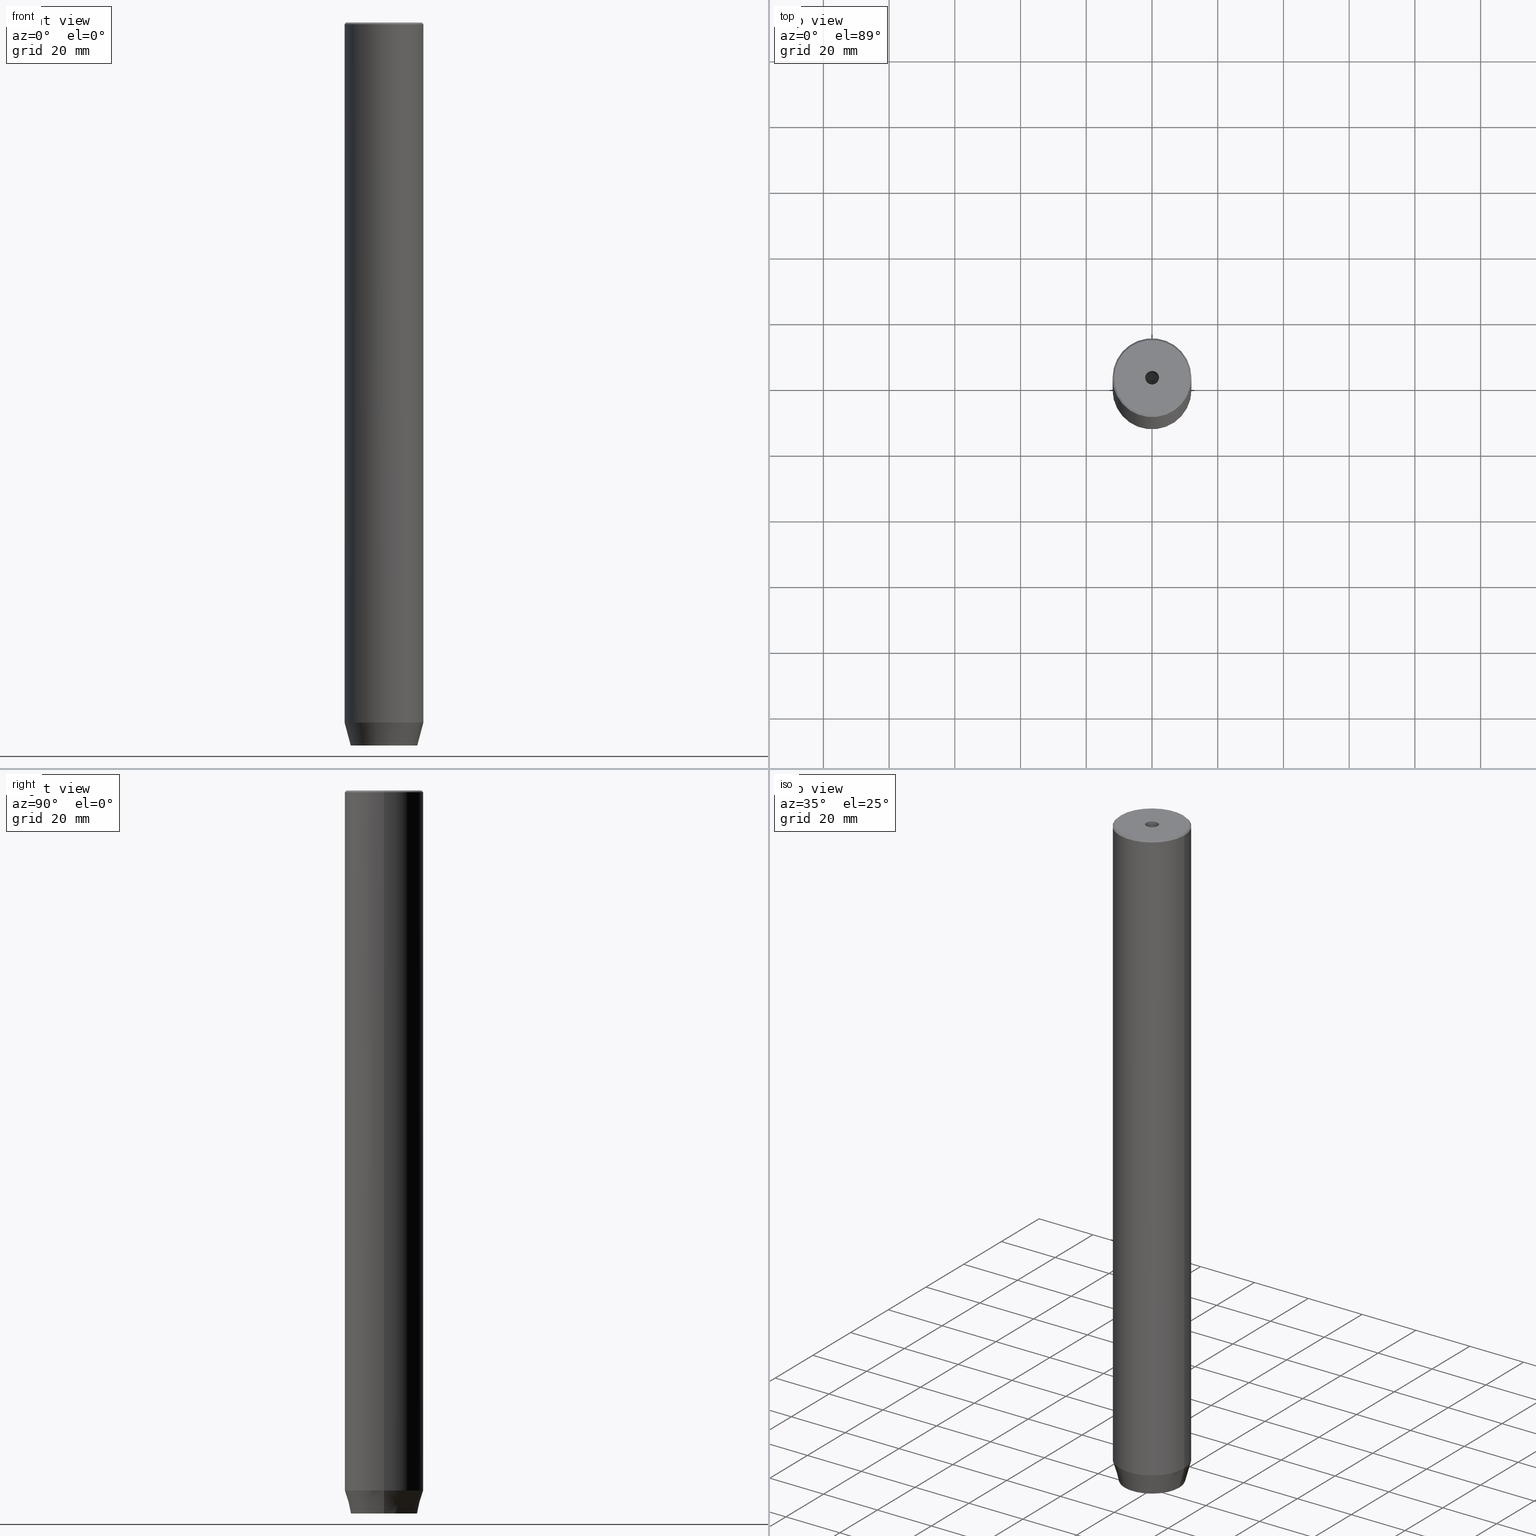
[diagram: canonical four-view strip — front | top / right | iso, engineering-drawing reading convention]
A machine part, canonical four-view strip (front | top / right | iso — engineering-drawing reading convention). The complete STEP part file that produces these views, byte-faithful:
ISO-10303-21;
HEADER;
FILE_DESCRIPTION (( 'STEP AP203' ),
    '1' );
FILE_NAME ('aea7.STEP',
    '2024-01-02T17:14:23',
    ( '' ),
    ( '' ),
    'SwSTEP 2.0',
    'SolidWorks 2019',
    '' );
FILE_SCHEMA (( 'CONFIG_CONTROL_DESIGN' ));
ENDSEC;

DATA;
#1 = CARTESIAN_POINT ( 'NONE',  ( 0.000000000000000000, 0.000000000000000000, 0.000000000000000000 ) ) ;
#2 = ORIENTED_EDGE ( 'NONE', *, *, #473, .T. ) ;
#3 = FACE_OUTER_BOUND ( 'NONE', #558, .T. ) ;
#4 = EDGE_CURVE ( 'NONE', #327, #171, #232, .T. ) ;
#5 = FACE_OUTER_BOUND ( 'NONE', #581, .T. ) ;
#6 = VERTEX_POINT ( 'NONE', #440 ) ;
#7 = FACE_OUTER_BOUND ( 'NONE', #457, .T. ) ;
#8 = CC_DESIGN_DATE_AND_TIME_ASSIGNMENT ( #430, #69, ( #262 ) ) ;
#9 = DIRECTION ( 'NONE',  ( -0.5000000000000000000, 0.8660254037844387076, 0.000000000000000000 ) ) ;
#10 = CIRCLE ( 'NONE', #338, 11.50000000000000888 ) ;
#11 = CC_DESIGN_SECURITY_CLASSIFICATION ( #262, ( #515 ) ) ;
#12 = PLANE ( 'NONE',  #413 ) ;
#13 = ORIENTED_EDGE ( 'NONE', *, *, #531, .F. ) ;
#14 = ORIENTED_EDGE ( 'NONE', *, *, #531, .T. ) ;
#15 = DESIGN_CONTEXT ( 'detailed design', #497, 'design' ) ;
#16 = DIRECTION ( 'NONE',  ( -0.000000000000000000, -0.000000000000000000, -1.000000000000000000 ) ) ;
#17 = DIRECTION ( 'NONE',  ( 0.2588190451025212391, 0.000000000000000000, 0.9659258262890680902 ) ) ;
#18 = ADVANCED_FACE ( 'NONE', ( #7 ), #191, .F. ) ;
#19 = AXIS2_PLACEMENT_3D ( 'NONE', #169, #79, #357 ) ;
#20 = CARTESIAN_POINT ( 'NONE',  ( 0.000000000000000000, 0.000000000000000000, -220.0000000000000000 ) ) ;
#21 = DATE_AND_TIME ( #245, #254 ) ;
#22 = VERTEX_POINT ( 'NONE', #498 ) ;
#23 = ADVANCED_FACE ( 'NONE', ( #453 ), #412, .F. ) ;
#24 = DIRECTION ( 'NONE',  ( 1.000000000000000000, 0.000000000000000000, 0.000000000000000000 ) ) ;
#25 = ORIENTED_EDGE ( 'NONE', *, *, #46, .T. ) ;
#26 = EDGE_CURVE ( 'NONE', #64, #432, #87, .T. ) ;
#27 = COORDINATED_UNIVERSAL_TIME_OFFSET ( 1, 0, .AHEAD. ) ;
#28 = AXIS2_PLACEMENT_3D ( 'NONE', #20, #500, #203 ) ;
#29 = VERTEX_POINT ( 'NONE', #200 ) ;
#30 = PLANE ( 'NONE',  #300 ) ;
#31 = CARTESIAN_POINT ( 'NONE',  ( -12.00000000000000000, 1.469576158976823947E-15, -0.5000000000000056621 ) ) ;
#32 = PERSON_AND_ORGANIZATION ( #374, #483 ) ;
#33 = LINE ( 'NONE', #576, #74 ) ;
#34 = AXIS2_PLACEMENT_3D ( 'NONE', #541, #135, #236 ) ;
#35 = AXIS2_PLACEMENT_3D ( 'NONE', #489, #287, #461 ) ;
#36 = APPROVAL_STATUS ( 'not_yet_approved' ) ;
#37 = CC_DESIGN_APPROVAL ( #420, ( #218 ) ) ;
#38 = FACE_OUTER_BOUND ( 'NONE', #272, .T. ) ;
#39 = EDGE_LOOP ( 'NONE', ( #213, #485, #265, #359, #239, #250 ) ) ;
#40 = EDGE_CURVE ( 'NONE', #432, #456, #127, .T. ) ;
#41 = VERTEX_POINT ( 'NONE', #318 ) ;
#42 = CARTESIAN_POINT ( 'NONE',  ( -4.336808689942017736E-16, 4.618802153517006737, -220.0000000000000000 ) ) ;
#43 = VECTOR ( 'NONE', #16, 1000.000000000000000 ) ;
#44 = CARTESIAN_POINT ( 'NONE',  ( -12.00000000000000000, 1.469576158976823947E-15, 0.000000000000000000 ) ) ;
#45 = APPROVAL_PERSON_ORGANIZATION ( #511, #420, #117 ) ;
#46 = EDGE_CURVE ( 'NONE', #202, #94, #162, .T. ) ;
#47 = LINE ( 'NONE', #326, #403 ) ;
#48 = EDGE_CURVE ( 'NONE', #6, #369, #90, .T. ) ;
#49 = EDGE_LOOP ( 'NONE', ( #340, #257, #534, #194 ) ) ;
#50 = LINE ( 'NONE', #505, #180 ) ;
#51 = DIRECTION ( 'NONE',  ( 0.8660254037844385966, -0.5000000000000001110, 0.000000000000000000 ) ) ;
#52 = VECTOR ( 'NONE', #380, 1000.000000000000000 ) ;
#53 =( GEOMETRIC_REPRESENTATION_CONTEXT ( 3 ) GLOBAL_UNCERTAINTY_ASSIGNED_CONTEXT ( ( #390 ) ) GLOBAL_UNIT_ASSIGNED_CONTEXT ( ( #376, #469, #189 ) ) REPRESENTATION_CONTEXT ( 'NONE', 'WORKASPACE' ) );
#54 = FACE_OUTER_BOUND ( 'NONE', #264, .T. ) ;
#55 = EDGE_LOOP ( 'NONE', ( #14, #290, #175, #226 ) ) ;
#56 = DIRECTION ( 'NONE',  ( -0.8571673007021113344, 1.049727191138617463E-16, 0.5150380749100558209 ) ) ;
#57 = ORIENTED_EDGE ( 'NONE', *, *, #353, .T. ) ;
#58 = DIRECTION ( 'NONE',  ( 0.000000000000000000, 1.000000000000000000, 0.000000000000000000 ) ) ;
#59 = EDGE_LOOP ( 'NONE', ( #110, #125, #550, #366 ) ) ;
#60 = CARTESIAN_POINT ( 'NONE',  ( 0.000000000000000000, 0.000000000000000000, 0.000000000000000000 ) ) ;
#61 = CONICAL_SURFACE ( 'NONE', #201, 2.099999999999994760, 1.029744258676652535 ) ;
#62 = CIRCLE ( 'NONE', #556, 2.099999999999998757 ) ;
#63 = LINE ( 'NONE', #336, #281 ) ;
#64 = VERTEX_POINT ( 'NONE', #446 ) ;
#65 = VERTEX_POINT ( 'NONE', #330 ) ;
#66 = VECTOR ( 'NONE', #225, 1000.000000000000000 ) ;
#67 = EDGE_CURVE ( 'NONE', #171, #65, #47, .T. ) ;
#68 = SHAPE_DEFINITION_REPRESENTATION ( #209, #410 ) ;
#69 = DATE_TIME_ROLE ( 'classification_date' ) ;
#70 = ADVANCED_FACE ( 'NONE', ( #3 ), #251, .T. ) ;
#71 = DIRECTION ( 'NONE',  ( 0.000000000000000000, 1.000000000000000000, 0.000000000000000000 ) ) ;
#72 = ORIENTED_EDGE ( 'NONE', *, *, #454, .F. ) ;
#73 = DIRECTION ( 'NONE',  ( -0.8660254037844384856, 0.5000000000000002220, 0.000000000000000000 ) ) ;
#74 = VECTOR ( 'NONE', #131, 1000.000000000000000 ) ;
#75 = ORIENTED_EDGE ( 'NONE', *, *, #563, .T. ) ;
#76 = VECTOR ( 'NONE', #371, 1000.000000000000114 ) ;
#77 = CYLINDRICAL_SURFACE ( 'NONE', #270, 2.099999999999996980 ) ;
#78 = EDGE_CURVE ( 'NONE', #309, #456, #417, .T. ) ;
#79 = DIRECTION ( 'NONE',  ( -1.000000000000000000, 0.000000000000000000, 0.000000000000000000 ) ) ;
#80 = VERTEX_POINT ( 'NONE', #145 ) ;
#81 = EDGE_CURVE ( 'NONE', #398, #171, #492, .T. ) ;
#82 = AXIS2_PLACEMENT_3D ( 'NONE', #354, #192, #266 ) ;
#83 = VERTEX_POINT ( 'NONE', #554 ) ;
#84 = CARTESIAN_POINT ( 'NONE',  ( -2.000000000000000000, 3.464101615137754830, -220.0000000000000000 ) ) ;
#85 = DIRECTION ( 'NONE',  ( 1.000000000000000000, 0.000000000000000000, 0.000000000000000000 ) ) ;
#86 = PLANE ( 'NONE',  #377 ) ;
#87 = LINE ( 'NONE', #44, #66 ) ;
#88 = LINE ( 'NONE', #507, #378 ) ;
#89 = EDGE_LOOP ( 'NONE', ( #317, #138, #286, #179 ) ) ;
#90 = LINE ( 'NONE', #407, #279 ) ;
#91 = DIRECTION ( 'NONE',  ( 1.000000000000000000, 0.000000000000000000, 0.000000000000000000 ) ) ;
#92 = DIRECTION ( 'NONE',  ( -0.000000000000000000, -0.000000000000000000, 1.000000000000000000 ) ) ;
#93 = ORIENTED_EDGE ( 'NONE', *, *, #585, .F. ) ;
#94 = VERTEX_POINT ( 'NONE', #99 ) ;
#95 = AXIS2_PLACEMENT_3D ( 'NONE', #391, #570, #431 ) ;
#96 = CIRCLE ( 'NONE', #210, 2.099999999999998757 ) ;
#97 = EDGE_CURVE ( 'NONE', #41, #80, #373, .T. ) ;
#98 = DIRECTION ( 'NONE',  ( 1.000000000000000000, 0.000000000000000000, 0.000000000000000000 ) ) ;
#99 = CARTESIAN_POINT ( 'NONE',  ( 2.099999999999994760, 0.000000000000000000, -30.00000000000000000 ) ) ;
#100 = CARTESIAN_POINT ( 'NONE',  ( 12.00000000000000000, 0.000000000000000000, -0.5000000000000056621 ) ) ;
#101 = ORIENTED_EDGE ( 'NONE', *, *, #454, .T. ) ;
#102 = DIRECTION ( 'NONE',  ( -0.5000000000000003331, -0.8660254037844385966, 0.000000000000000000 ) ) ;
#103 = CC_DESIGN_PERSON_AND_ORGANIZATION_ASSIGNMENT ( #532, #569, ( #262 ) ) ;
#104 = CONICAL_SURFACE ( 'NONE', #252, 11.50000000000000888, 0.7853981633974344012 ) ;
#105 = FACE_OUTER_BOUND ( 'NONE', #59, .T. ) ;
#106 = DATE_AND_TIME ( #471, #129 ) ;
#107 = VERTEX_POINT ( 'NONE', #506 ) ;
#108 = LINE ( 'NONE', #118, #235 ) ;
#109 = PERSON_AND_ORGANIZATION ( #374, #483 ) ;
#110 = ORIENTED_EDGE ( 'NONE', *, *, #324, .T. ) ;
#111 = DATE_AND_TIME ( #160, #443 ) ;
#112 = CIRCLE ( 'NONE', #246, 2.099999999999994760 ) ;
#113 = FACE_OUTER_BOUND ( 'NONE', #439, .T. ) ;
#114 = APPROVAL_STATUS ( 'not_yet_approved' ) ;
#115 = EDGE_LOOP ( 'NONE', ( #350, #400, #315, #402 ) ) ;
#116 = DIRECTION ( 'NONE',  ( 1.000000000000000000, 0.000000000000000000, 0.000000000000000000 ) ) ;
#117 = APPROVAL_ROLE ( '' ) ;
#118 = CARTESIAN_POINT ( 'NONE',  ( -4.000000000000000000, 0.000000000000000000, -220.0000000000000000 ) ) ;
#119 = PERSON_AND_ORGANIZATION ( #374, #483 ) ;
#120 = ADVANCED_FACE ( 'NONE', ( #484 ), #229, .T. ) ;
#121 = ORIENTED_EDGE ( 'NONE', *, *, #228, .T. ) ;
#122 = DIRECTION ( 'NONE',  ( -0.000000000000000000, -0.000000000000000000, -1.000000000000000000 ) ) ;
#123 = FACE_OUTER_BOUND ( 'NONE', #408, .T. ) ;
#124 = DIRECTION ( 'NONE',  ( 1.000000000000000000, 0.000000000000000000, 0.000000000000000000 ) ) ;
#125 = ORIENTED_EDGE ( 'NONE', *, *, #526, .F. ) ;
#126 = FACE_OUTER_BOUND ( 'NONE', #509, .T. ) ;
#127 = CIRCLE ( 'NONE', #546, 12.00000000000000000 ) ;
#128 = VECTOR ( 'NONE', #394, 1000.000000000000000 ) ;
#129 = LOCAL_TIME ( 18, 14, 23.00000000000000000, #298 ) ;
#130 = DIRECTION ( 'NONE',  ( 0.000000000000000000, 0.000000000000000000, -1.000000000000000000 ) ) ;
#131 = DIRECTION ( 'NONE',  ( 0.8660254037844385966, -0.5000000000000001110, 0.000000000000000000 ) ) ;
#132 = FACE_BOUND ( 'NONE', #384, .T. ) ;
#133 = CARTESIAN_POINT ( 'NONE',  ( 0.000000000000000000, 0.000000000000000000, -0.5000000000000056621 ) ) ;
#134 = ORIENTED_EDGE ( 'NONE', *, *, #97, .F. ) ;
#135 = DIRECTION ( 'NONE',  ( -0.000000000000000000, -0.000000000000000000, 1.000000000000000000 ) ) ;
#136 = CC_DESIGN_PERSON_AND_ORGANIZATION_ASSIGNMENT ( #119, #474, ( #515 ) ) ;
#137 = AXIS2_PLACEMENT_3D ( 'NONE', #253, #307, #214 ) ;
#138 = ORIENTED_EDGE ( 'NONE', *, *, #353, .F. ) ;
#139 = CARTESIAN_POINT ( 'NONE',  ( -2.000000000000000000, 3.464101615137754830, -217.2000000000000171 ) ) ;
#140 = DIRECTION ( 'NONE',  ( -0.000000000000000000, -0.000000000000000000, -1.000000000000000000 ) ) ;
#141 = ORIENTED_EDGE ( 'NONE', *, *, #142, .T. ) ;
#142 = EDGE_CURVE ( 'NONE', #107, #327, #538, .T. ) ;
#143 = CARTESIAN_POINT ( 'NONE',  ( 0.000000000000000000, 0.000000000000000000, -212.9999999999999716 ) ) ;
#144 = CARTESIAN_POINT ( 'NONE',  ( -7.656934449090954900E-15, 0.000000000000000000, -31.26180729995787289 ) ) ;
#145 = CARTESIAN_POINT ( 'NONE',  ( 4.000000000000000000, -2.309401076758502480, -217.2000000000000171 ) ) ;
#146 = ADVANCED_FACE ( 'NONE', ( #132, #543 ), #86, .T. ) ;
#147 = CARTESIAN_POINT ( 'NONE',  ( 4.000000000000000000, 0.000000000000000000, -217.2000000000000171 ) ) ;
#148 = AXIS2_PLACEMENT_3D ( 'NONE', #496, #557, #24 ) ;
#149 = EDGE_CURVE ( 'NONE', #243, #234, #10, .T. ) ;
#150 = DIRECTION ( 'NONE',  ( 1.000000000000000000, 0.000000000000000000, 0.000000000000000000 ) ) ;
#151 = ORIENTED_EDGE ( 'NONE', *, *, #48, .T. ) ;
#152 = EDGE_CURVE ( 'NONE', #94, #202, #112, .T. ) ;
#153 = ORIENTED_EDGE ( 'NONE', *, *, #540, .F. ) ;
#154 = CONICAL_SURFACE ( 'NONE', #247, 11.50000000000000888, 0.7853981633974344012 ) ;
#155 = VECTOR ( 'NONE', #464, 999.9999999999998863 ) ;
#156 = VERTEX_POINT ( 'NONE', #553 ) ;
#157 = ORIENTED_EDGE ( 'NONE', *, *, #389, .T. ) ;
#158 = DIRECTION ( 'NONE',  ( -0.000000000000000000, -0.000000000000000000, 1.000000000000000000 ) ) ;
#159 = CALENDAR_DATE ( 2024, 2, 1 ) ;
#160 = CALENDAR_DATE ( 2024, 2, 1 ) ;
#161 = APPROVAL ( #114, 'NEUR�EN�' ) ;
#162 = CIRCLE ( 'NONE', #504, 2.099999999999994760 ) ;
#163 = APPROVAL_STATUS ( 'not_yet_approved' ) ;
#164 = EDGE_CURVE ( 'NONE', #94, #22, #242, .T. ) ;
#165 = PERSON_AND_ORGANIZATION_ROLE ( 'design_supplier' ) ;
#166 = ORIENTED_EDGE ( 'NONE', *, *, #228, .F. ) ;
#167 = PERSON_AND_ORGANIZATION ( #374, #483 ) ;
#168 = PLANE ( 'NONE',  #137 ) ;
#169 = CARTESIAN_POINT ( 'NONE',  ( -4.000000000000000000, 0.000000000000000000, -217.2000000000000171 ) ) ;
#170 = EDGE_CURVE ( 'NONE', #327, #41, #33, .T. ) ;
#171 = VERTEX_POINT ( 'NONE', #42 ) ;
#172 = ORIENTED_EDGE ( 'NONE', *, *, #508, .T. ) ;
#173 = FACE_OUTER_BOUND ( 'NONE', #435, .T. ) ;
#174 = APPLICATION_PROTOCOL_DEFINITION ( 'international standard', 'config_control_design', 1994, #497 ) ;
#175 = ORIENTED_EDGE ( 'NONE', *, *, #460, .F. ) ;
#176 = DIRECTION ( 'NONE',  ( -0.8660254037844384856, -0.5000000000000002220, 0.000000000000000000 ) ) ;
#177 = CARTESIAN_POINT ( 'NONE',  ( 0.000000000000000000, 10.12435565298212836, -220.0000000000000000 ) ) ;
#178 = CLOSED_SHELL ( 'NONE', ( #18, #468, #291, #267, #120, #555, #146, #285, #70, #273, #23, #207, #522, #415, #567, #294, #249, #182, #198 ) ) ;
#179 = ORIENTED_EDGE ( 'NONE', *, *, #4, .T. ) ;
#180 = VECTOR ( 'NONE', #58, 1000.000000000000000 ) ;
#181 = CARTESIAN_POINT ( 'NONE',  ( 4.000000000000000000, 2.309401076758503368, -217.2000000000000171 ) ) ;
#182 = ADVANCED_FACE ( 'NONE', ( #5 ), #61, .F. ) ;
#183 = DIRECTION ( 'NONE',  ( -0.000000000000000000, -0.000000000000000000, 1.000000000000000000 ) ) ;
#184 = ORIENTED_EDGE ( 'NONE', *, *, #215, .F. ) ;
#185 = DIRECTION ( 'NONE',  ( 1.000000000000000000, 0.000000000000000000, 0.000000000000000000 ) ) ;
#186 = CARTESIAN_POINT ( 'NONE',  ( 2.000000000000000888, -3.464101615137754386, -220.0000000000000000 ) ) ;
#187 = EDGE_CURVE ( 'NONE', #520, #94, #219, .T. ) ;
#188 = CARTESIAN_POINT ( 'NONE',  ( 0.000000000000000000, 0.000000000000000000, -30.00000000000000000 ) ) ;
#189 =( NAMED_UNIT ( * ) SI_UNIT ( $, .STERADIAN. ) SOLID_ANGLE_UNIT ( ) );
#190 = ORIENTED_EDGE ( 'NONE', *, *, #399, .F. ) ;
#191 = CYLINDRICAL_SURFACE ( 'NONE', #480, 2.099999999999996980 ) ;
#192 = DIRECTION ( 'NONE',  ( -0.000000000000000000, -0.000000000000000000, 1.000000000000000000 ) ) ;
#193 = AXIS2_PLACEMENT_3D ( 'NONE', #295, #516, #467 ) ;
#194 = ORIENTED_EDGE ( 'NONE', *, *, #526, .T. ) ;
#195 = DIRECTION ( 'NONE',  ( 1.000000000000000000, 0.000000000000000000, 0.000000000000000000 ) ) ;
#196 = PLANE ( 'NONE',  #35 ) ;
#197 = DIRECTION ( 'NONE',  ( -0.000000000000000000, -0.000000000000000000, 1.000000000000000000 ) ) ;
#198 = ADVANCED_FACE ( 'NONE', ( #126 ), #77, .F. ) ;
#199 = ORIENTED_EDGE ( 'NONE', *, *, #215, .T. ) ;
#200 = CARTESIAN_POINT ( 'NONE',  ( -10.12435565298212836, 1.354726066681110655E-15, -220.0000000000000000 ) ) ;
#201 = AXIS2_PLACEMENT_3D ( 'NONE', #188, #579, #85 ) ;
#202 = VERTEX_POINT ( 'NONE', #513 ) ;
#203 = DIRECTION ( 'NONE',  ( 1.000000000000000000, 0.000000000000000000, 0.000000000000000000 ) ) ;
#204 = APPROVAL_DATE_TIME ( #21, #420 ) ;
#205 = ORIENTED_EDGE ( 'NONE', *, *, #499, .T. ) ;
#206 = ORIENTED_EDGE ( 'NONE', *, *, #164, .T. ) ;
#207 = ADVANCED_FACE ( 'NONE', ( #105 ), #348, .F. ) ;
#208 = APPROVAL_DATE_TIME ( #106, #560 ) ;
#209 = PRODUCT_DEFINITION_SHAPE ( 'NONE', 'NONE',  #218 ) ;
#210 = AXIS2_PLACEMENT_3D ( 'NONE', #433, #352, #314 ) ;
#211 = ORIENTED_EDGE ( 'NONE', *, *, #347, .T. ) ;
#212 = FACE_OUTER_BOUND ( 'NONE', #333, .T. ) ;
#213 = ORIENTED_EDGE ( 'NONE', *, *, #81, .F. ) ;
#214 = DIRECTION ( 'NONE',  ( -1.000000000000000000, 0.000000000000000000, -0.000000000000000000 ) ) ;
#215 = EDGE_CURVE ( 'NONE', #64, #309, #217, .T. ) ;
#216 = CARTESIAN_POINT ( 'NONE',  ( 12.00000000000000000, 0.000000000000000000, -212.9999999999999716 ) ) ;
#217 = CIRCLE ( 'NONE', #574, 12.00000000000000000 ) ;
#218 = PRODUCT_DEFINITION ( 'NEZN�M�', '', #515, #15 ) ;
#219 = LINE ( 'NONE', #442, #311 ) ;
#220 = AXIS2_PLACEMENT_3D ( 'NONE', #297, #510, #564 ) ;
#221 = CALENDAR_DATE ( 2024, 2, 1 ) ;
#222 = PLANE ( 'NONE',  #528 ) ;
#223 = CARTESIAN_POINT ( 'NONE',  ( 0.000000000000000000, 0.000000000000000000, 0.000000000000000000 ) ) ;
#224 = VECTOR ( 'NONE', #140, 1000.000000000000000 ) ;
#225 = DIRECTION ( 'NONE',  ( -0.000000000000000000, -0.000000000000000000, 1.000000000000000000 ) ) ;
#226 = ORIENTED_EDGE ( 'NONE', *, *, #512, .F. ) ;
#227 = ORIENTED_EDGE ( 'NONE', *, *, #428, .F. ) ;
#228 = EDGE_CURVE ( 'NONE', #29, #436, #321, .T. ) ;
#229 = CYLINDRICAL_SURFACE ( 'NONE', #514, 12.00000000000000000 ) ;
#230 = ORIENTED_EDGE ( 'NONE', *, *, #97, .T. ) ;
#231 = ORIENTED_EDGE ( 'NONE', *, *, #170, .T. ) ;
#232 = LINE ( 'NONE', #421, #43 ) ;
#233 = CARTESIAN_POINT ( 'NONE',  ( 12.00000000000000000, 0.000000000000000000, -212.9999999999999716 ) ) ;
#234 = VERTEX_POINT ( 'NONE', #427 ) ;
#235 = VECTOR ( 'NONE', #71, 1000.000000000000000 ) ;
#236 = DIRECTION ( 'NONE',  ( 1.000000000000000000, 0.000000000000000000, 0.000000000000000000 ) ) ;
#237 = LOCAL_TIME ( 18, 14, 23.00000000000000000, #466 ) ;
#238 = CARTESIAN_POINT ( 'NONE',  ( 4.336808689942017736E-16, -4.618802153517006737, -217.2000000000000171 ) ) ;
#239 = ORIENTED_EDGE ( 'NONE', *, *, #389, .F. ) ;
#240 = ORIENTED_EDGE ( 'NONE', *, *, #187, .F. ) ;
#241 = DIRECTION ( 'NONE',  ( 0.8660254037844384856, -0.5000000000000002220, 0.000000000000000000 ) ) ;
#242 = LINE ( 'NONE', #490, #441 ) ;
#243 = VERTEX_POINT ( 'NONE', #387 ) ;
#244 = CARTESIAN_POINT ( 'NONE',  ( 4.000000000000000000, -2.309401076758502480, -217.2000000000000171 ) ) ;
#245 = CALENDAR_DATE ( 2024, 2, 1 ) ;
#246 = AXIS2_PLACEMENT_3D ( 'NONE', #501, #92, #419 ) ;
#247 = AXIS2_PLACEMENT_3D ( 'NONE', #547, #587, #437 ) ;
#248 = ORIENTED_EDGE ( 'NONE', *, *, #149, .F. ) ;
#249 = ADVANCED_FACE ( 'NONE', ( #123 ), #168, .T. ) ;
#250 = ORIENTED_EDGE ( 'NONE', *, *, #67, .F. ) ;
#251 = CONICAL_SURFACE ( 'NONE', #34, 12.00000000000000000, 0.2617993877991499629 ) ;
#252 = AXIS2_PLACEMENT_3D ( 'NONE', #482, #401, #360 ) ;
#253 = CARTESIAN_POINT ( 'NONE',  ( 0.000000000000000000, 0.000000000000000000, -217.2000000000000171 ) ) ;
#254 = LOCAL_TIME ( 18, 14, 23.00000000000000000, #382 ) ;
#255 = DIRECTION ( 'NONE',  ( -0.000000000000000000, -0.000000000000000000, 1.000000000000000000 ) ) ;
#256 = APPROVAL_ROLE ( '' ) ;
#257 = ORIENTED_EDGE ( 'NONE', *, *, #4, .F. ) ;
#258 = EDGE_CURVE ( 'NONE', #243, #432, #429, .T. ) ;
#259 = CARTESIAN_POINT ( 'NONE',  ( -11.50000000000000888, 0.000000000000000000, 0.000000000000000000 ) ) ;
#260 = DIRECTION ( 'NONE',  ( -1.000000000000000000, 0.000000000000000000, -0.000000000000000000 ) ) ;
#261 = APPROVAL_ROLE ( '' ) ;
#262 = SECURITY_CLASSIFICATION ( '', '', #518 ) ;
#263 = VERTEX_POINT ( 'NONE', #393 ) ;
#264 = EDGE_LOOP ( 'NONE', ( #75, #190, #568, #449 ) ) ;
#265 = ORIENTED_EDGE ( 'NONE', *, *, #563, .F. ) ;
#266 = DIRECTION ( 'NONE',  ( 1.000000000000000000, 0.000000000000000000, 0.000000000000000000 ) ) ;
#267 = ADVANCED_FACE ( 'NONE', ( #345 ), #385, .T. ) ;
#268 = DIRECTION ( 'NONE',  ( 1.000000000000000000, 0.000000000000000000, 0.000000000000000000 ) ) ;
#269 = CARTESIAN_POINT ( 'NONE',  ( 4.000000000000000000, 0.000000000000000000, -220.0000000000000000 ) ) ;
#270 = AXIS2_PLACEMENT_3D ( 'NONE', #582, #255, #337 ) ;
#271 = EDGE_LOOP ( 'NONE', ( #406, #549 ) ) ;
#272 = EDGE_LOOP ( 'NONE', ( #157, #459, #134, #57 ) ) ;
#273 = ADVANCED_FACE ( 'NONE', ( #173 ), #104, .T. ) ;
#274 = CC_DESIGN_PERSON_AND_ORGANIZATION_ASSIGNMENT ( #167, #476, ( #293 ) ) ;
#275 = LINE ( 'NONE', #238, #224 ) ;
#276 = ORIENTED_EDGE ( 'NONE', *, *, #152, .F. ) ;
#277 = ORIENTED_EDGE ( 'NONE', *, *, #164, .F. ) ;
#278 = APPLICATION_PROTOCOL_DEFINITION ( 'international standard', 'config_control_design', 1994, #465 ) ;
#279 = VECTOR ( 'NONE', #552, 1000.000000000000114 ) ;
#280 = DIRECTION ( 'NONE',  ( -0.8660254037844385966, -0.4999999999999999445, 0.000000000000000000 ) ) ;
#281 = VECTOR ( 'NONE', #56, 1000.000000000000000 ) ;
#282 = DIRECTION ( 'NONE',  ( -0.000000000000000000, -0.000000000000000000, 1.000000000000000000 ) ) ;
#283 = DIRECTION ( 'NONE',  ( 0.8660254037844387076, 0.5000000000000001110, 0.000000000000000000 ) ) ;
#284 = CARTESIAN_POINT ( 'NONE',  ( 4.000000000000000000, 0.000000000000000000, -217.2000000000000171 ) ) ;
#285 = ADVANCED_FACE ( 'NONE', ( #494 ), #404, .T. ) ;
#286 = ORIENTED_EDGE ( 'NONE', *, *, #170, .F. ) ;
#287 = DIRECTION ( 'NONE',  ( 0.5000000000000001110, 0.8660254037844385966, -0.000000000000000000 ) ) ;
#288 = FACE_OUTER_BOUND ( 'NONE', #572, .T. ) ;
#289 = CARTESIAN_POINT ( 'NONE',  ( 0.000000000000000000, 0.000000000000000000, 0.000000000000000000 ) ) ;
#290 = ORIENTED_EDGE ( 'NONE', *, *, #540, .T. ) ;
#291 = ADVANCED_FACE ( 'NONE', ( #451 ), #154, .T. ) ;
#292 = ORIENTED_EDGE ( 'NONE', *, *, #491, .T. ) ;
#293 = PRODUCT ( 'aea7', 'aea7', '', ( #573 ) ) ;
#294 = ADVANCED_FACE ( 'NONE', ( #539 ), #196, .F. ) ;
#295 = CARTESIAN_POINT ( 'NONE',  ( 0.000000000000000000, 0.000000000000000000, -0.5000000000000056621 ) ) ;
#296 = APPROVAL_DATE_TIME ( #571, #161 ) ;
#297 = CARTESIAN_POINT ( 'NONE',  ( 0.000000000000000000, 0.000000000000000000, 0.000000000000000000 ) ) ;
#298 = COORDINATED_UNIVERSAL_TIME_OFFSET ( 1, 0, .AHEAD. ) ;
#299 = VECTOR ( 'NONE', #444, 999.9999999999998863 ) ;
#300 = AXIS2_PLACEMENT_3D ( 'NONE', #177, #130, #260 ) ;
#301 = ORIENTED_EDGE ( 'NONE', *, *, #40, .T. ) ;
#302 = LINE ( 'NONE', #269, #52 ) ;
#303 = DIRECTION ( 'NONE',  ( -0.000000000000000000, -0.000000000000000000, 1.000000000000000000 ) ) ;
#304 = ORIENTED_EDGE ( 'NONE', *, *, #495, .T. ) ;
#305 = EDGE_CURVE ( 'NONE', #234, #243, #425, .T. ) ;
#306 = ORIENTED_EDGE ( 'NONE', *, *, #187, .T. ) ;
#307 = DIRECTION ( 'NONE',  ( 0.000000000000000000, 0.000000000000000000, -1.000000000000000000 ) ) ;
#308 = CARTESIAN_POINT ( 'NONE',  ( -2.000000000000000000, 3.464101615137754830, -217.2000000000000171 ) ) ;
#309 = VERTEX_POINT ( 'NONE', #216 ) ;
#310 = EDGE_CURVE ( 'NONE', #456, #432, #434, .T. ) ;
#311 = VECTOR ( 'NONE', #493, 1000.000000000000000 ) ;
#312 = VECTOR ( 'NONE', #122, 1000.000000000000000 ) ;
#313 = LOCAL_TIME ( 18, 14, 23.00000000000000000, #27 ) ;
#314 = DIRECTION ( 'NONE',  ( 1.000000000000000000, 0.000000000000000000, 0.000000000000000000 ) ) ;
#315 = ORIENTED_EDGE ( 'NONE', *, *, #40, .F. ) ;
#316 = CC_DESIGN_PERSON_AND_ORGANIZATION_ASSIGNMENT ( #341, #165, ( #515 ) ) ;
#317 = ORIENTED_EDGE ( 'NONE', *, *, #67, .T. ) ;
#318 = CARTESIAN_POINT ( 'NONE',  ( 4.000000000000000000, 2.309401076758503368, -217.2000000000000171 ) ) ;
#319 = CARTESIAN_POINT ( 'NONE',  ( -4.000000000000000000, -2.309401076758503368, -217.2000000000000171 ) ) ;
#320 = DIRECTION ( 'NONE',  ( -0.000000000000000000, -0.000000000000000000, 1.000000000000000000 ) ) ;
#321 = CIRCLE ( 'NONE', #395, 10.12435565298212836 ) ;
#322 = CIRCLE ( 'NONE', #148, 12.00000000000000000 ) ;
#323 = COORDINATED_UNIVERSAL_TIME_OFFSET ( 1, 0, .AHEAD. ) ;
#324 = EDGE_CURVE ( 'NONE', #156, #398, #108, .T. ) ;
#325 = ORIENTED_EDGE ( 'NONE', *, *, #512, .T. ) ;
#326 = CARTESIAN_POINT ( 'NONE',  ( 2.000000000000000444, 3.464101615137754386, -220.0000000000000000 ) ) ;
#327 = VERTEX_POINT ( 'NONE', #535 ) ;
#328 = ORIENTED_EDGE ( 'NONE', *, *, #491, .F. ) ;
#329 = CARTESIAN_POINT ( 'NONE',  ( -4.000000000000000000, 2.309401076758503368, -217.2000000000000171 ) ) ;
#330 = CARTESIAN_POINT ( 'NONE',  ( 4.000000000000000000, 2.309401076758503368, -220.0000000000000000 ) ) ;
#331 = CARTESIAN_POINT ( 'NONE',  ( 0.000000000000000000, 0.000000000000000000, -30.00000000000000000 ) ) ;
#332 = PERSON_AND_ORGANIZATION_ROLE ( 'creator' ) ;
#333 = EDGE_LOOP ( 'NONE', ( #211, #450, #344, #2 ) ) ;
#334 = DIRECTION ( 'NONE',  ( 0.000000000000000000, -1.000000000000000000, 0.000000000000000000 ) ) ;
#335 = VECTOR ( 'NONE', #458, 1000.000000000000000 ) ;
#336 = CARTESIAN_POINT ( 'NONE',  ( -2.099999999999994760, 2.571758278209435054E-16, -30.00000000000000000 ) ) ;
#337 = DIRECTION ( 'NONE',  ( 1.000000000000000000, 0.000000000000000000, 0.000000000000000000 ) ) ;
#338 = AXIS2_PLACEMENT_3D ( 'NONE', #289, #414, #365 ) ;
#339 = AXIS2_PLACEMENT_3D ( 'NONE', #331, #197, #91 ) ;
#340 = ORIENTED_EDGE ( 'NONE', *, *, #81, .T. ) ;
#341 = PERSON_AND_ORGANIZATION ( #374, #483 ) ;
#342 = FACE_BOUND ( 'NONE', #39, .T. ) ;
#343 = DIRECTION ( 'NONE',  ( -0.7071067811865376918, 0.000000000000000000, -0.7071067811865574537 ) ) ;
#344 = ORIENTED_EDGE ( 'NONE', *, *, #499, .F. ) ;
#345 = FACE_OUTER_BOUND ( 'NONE', #55, .T. ) ;
#346 = MANIFOLD_SOLID_BREP ( 'Vrt�k z�vitn�ku pro M5 z�vit1', #178 ) ;
#347 = EDGE_CURVE ( 'NONE', #83, #372, #448, .T. ) ;
#348 = PLANE ( 'NONE',  #19 ) ;
#349 = DATE_TIME_ROLE ( 'creation_date' ) ;
#350 = ORIENTED_EDGE ( 'NONE', *, *, #305, .F. ) ;
#351 = CARTESIAN_POINT ( 'NONE',  ( 0.000000000000000000, 0.000000000000000000, -212.9999999999999716 ) ) ;
#352 = DIRECTION ( 'NONE',  ( -0.000000000000000000, -0.000000000000000000, 1.000000000000000000 ) ) ;
#353 = EDGE_CURVE ( 'NONE', #41, #65, #438, .T. ) ;
#354 = CARTESIAN_POINT ( 'NONE',  ( 0.000000000000000000, 0.000000000000000000, 0.000000000000000000 ) ) ;
#355 = AXIS2_PLACEMENT_3D ( 'NONE', #351, #530, #116 ) ;
#356 = VECTOR ( 'NONE', #73, 1000.000000000000114 ) ;
#357 = DIRECTION ( 'NONE',  ( 0.000000000000000000, 0.000000000000000000, 1.000000000000000000 ) ) ;
#358 = EDGE_LOOP ( 'NONE', ( #519, #463, #301, #383 ) ) ;
#359 = ORIENTED_EDGE ( 'NONE', *, *, #347, .F. ) ;
#360 = DIRECTION ( 'NONE',  ( -1.000000000000000000, 0.000000000000000000, 0.000000000000000000 ) ) ;
#361 = ORIENTED_EDGE ( 'NONE', *, *, #310, .F. ) ;
#362 = ORIENTED_EDGE ( 'NONE', *, *, #310, .T. ) ;
#363 = VECTOR ( 'NONE', #343, 999.9999999999998863 ) ;
#364 = CARTESIAN_POINT ( 'NONE',  ( 2.000000000000000888, -3.464101615137754386, -217.2000000000000171 ) ) ;
#365 = DIRECTION ( 'NONE',  ( 1.000000000000000000, 0.000000000000000000, 0.000000000000000000 ) ) ;
#366 = ORIENTED_EDGE ( 'NONE', *, *, #399, .T. ) ;
#367 = CARTESIAN_POINT ( 'NONE',  ( 0.000000000000000000, 0.000000000000000000, -30.00000000000000000 ) ) ;
#368 = DIRECTION ( 'NONE',  ( -0.000000000000000000, -0.000000000000000000, 1.000000000000000000 ) ) ;
#369 = VERTEX_POINT ( 'NONE', #319 ) ;
#370 = CARTESIAN_POINT ( 'NONE',  ( 12.00000000000000000, 0.000000000000000000, 0.000000000000000000 ) ) ;
#371 = DIRECTION ( 'NONE',  ( -0.8660254037844384856, -0.5000000000000002220, 0.000000000000000000 ) ) ;
#372 = VERTEX_POINT ( 'NONE', #488 ) ;
#373 = LINE ( 'NONE', #147, #470 ) ;
#374 = PERSON ( 'NEUR�EN�', 'NEUR�EN�', 'NEUR�EN�', ('NEUR�EN�'), ('NEUR�EN�'), ('NEUR�EN�') ) ;
#375 = CC_DESIGN_DATE_AND_TIME_ASSIGNMENT ( #111, #349, ( #218 ) ) ;
#376 =( LENGTH_UNIT ( ) NAMED_UNIT ( * ) SI_UNIT ( .MILLI., .METRE. ) );
#377 = AXIS2_PLACEMENT_3D ( 'NONE', #223, #462, #150 ) ;
#378 = VECTOR ( 'NONE', #282, 1000.000000000000000 ) ;
#379 = LINE ( 'NONE', #517, #537 ) ;
#380 = DIRECTION ( 'NONE',  ( 0.000000000000000000, -1.000000000000000000, 0.000000000000000000 ) ) ;
#381 = CC_DESIGN_PERSON_AND_ORGANIZATION_ASSIGNMENT ( #502, #332, ( #218 ) ) ;
#382 = COORDINATED_UNIVERSAL_TIME_OFFSET ( 1, 0, .AHEAD. ) ;
#383 = ORIENTED_EDGE ( 'NONE', *, *, #78, .F. ) ;
#384 = EDGE_LOOP ( 'NONE', ( #392, #227 ) ) ;
#385 = CONICAL_SURFACE ( 'NONE', #355, 12.00000000000000000, 0.2617993877991499629 ) ;
#386 = APPROVAL_PERSON_ORGANIZATION ( #109, #161, #261 ) ;
#387 = CARTESIAN_POINT ( 'NONE',  ( -11.50000000000000888, 0.000000000000000000, 0.000000000000000000 ) ) ;
#388 = CARTESIAN_POINT ( 'NONE',  ( -4.000000000000000000, 2.309401076758503368, -220.0000000000000000 ) ) ;
#389 = EDGE_CURVE ( 'NONE', #65, #83, #302, .T. ) ;
#390 = UNCERTAINTY_MEASURE_WITH_UNIT (LENGTH_MEASURE( 1.000000000000000082E-05 ), #376, 'distance_accuracy_value', 'NONE');
#391 = CARTESIAN_POINT ( 'NONE',  ( 2.000000000000000888, -3.464101615137754386, -217.2000000000000171 ) ) ;
#392 = ORIENTED_EDGE ( 'NONE', *, *, #508, .F. ) ;
#393 = CARTESIAN_POINT ( 'NONE',  ( -2.099999999999998757, 2.571758278209440478E-16, -1.990051048614449116E-16 ) ) ;
#394 = DIRECTION ( 'NONE',  ( -0.000000000000000000, -0.000000000000000000, -1.000000000000000000 ) ) ;
#395 = AXIS2_PLACEMENT_3D ( 'NONE', #577, #533, #124 ) ;
#396 = VECTOR ( 'NONE', #422, 1000.000000000000000 ) ;
#397 = DIRECTION ( 'NONE',  ( 1.000000000000000000, 0.000000000000000000, 0.000000000000000000 ) ) ;
#398 = VERTEX_POINT ( 'NONE', #388 ) ;
#399 = EDGE_CURVE ( 'NONE', #369, #156, #524, .T. ) ;
#400 = ORIENTED_EDGE ( 'NONE', *, *, #585, .T. ) ;
#401 = DIRECTION ( 'NONE',  ( 0.000000000000000000, 0.000000000000000000, -1.000000000000000000 ) ) ;
#402 = ORIENTED_EDGE ( 'NONE', *, *, #258, .F. ) ;
#403 = VECTOR ( 'NONE', #51, 1000.000000000000000 ) ;
#404 = CYLINDRICAL_SURFACE ( 'NONE', #82, 12.00000000000000000 ) ;
#405 = CC_DESIGN_APPROVAL ( #161, ( #515 ) ) ;
#406 = ORIENTED_EDGE ( 'NONE', *, *, #149, .T. ) ;
#407 = CARTESIAN_POINT ( 'NONE',  ( -2.000000000000000888, -3.464101615137754386, -217.2000000000000171 ) ) ;
#408 = EDGE_LOOP ( 'NONE', ( #141, #231, #230, #205, #151, #304 ) ) ;
#409 = CARTESIAN_POINT ( 'NONE',  ( 0.000000000000000000, 0.000000000000000000, 0.000000000000000000 ) ) ;
#410 = ADVANCED_BREP_SHAPE_REPRESENTATION ( 'aea7', ( #346, #220 ), #53 ) ;
#411 = ORIENTED_EDGE ( 'NONE', *, *, #46, .F. ) ;
#412 = PLANE ( 'NONE',  #423 ) ;
#413 = AXIS2_PLACEMENT_3D ( 'NONE', #551, #102, #241 ) ;
#414 = DIRECTION ( 'NONE',  ( -0.000000000000000000, -0.000000000000000000, 1.000000000000000000 ) ) ;
#415 = ADVANCED_FACE ( 'NONE', ( #212 ), #580, .F. ) ;
#416 = ORIENTED_EDGE ( 'NONE', *, *, #78, .T. ) ;
#417 = LINE ( 'NONE', #370, #527 ) ;
#418 = LINE ( 'NONE', #364, #76 ) ;
#419 = DIRECTION ( 'NONE',  ( 1.000000000000000000, 0.000000000000000000, 0.000000000000000000 ) ) ;
#420 = APPROVAL ( #163, 'NEUR�EN�' ) ;
#421 = CARTESIAN_POINT ( 'NONE',  ( 0.000000000000000000, 4.618802153517006737, -217.2000000000000171 ) ) ;
#422 = DIRECTION ( 'NONE',  ( -0.000000000000000000, -0.000000000000000000, -1.000000000000000000 ) ) ;
#423 = AXIS2_PLACEMENT_3D ( 'NONE', #139, #9, #280 ) ;
#424 = LINE ( 'NONE', #329, #396 ) ;
#425 = CIRCLE ( 'NONE', #481, 11.50000000000000888 ) ;
#426 = CIRCLE ( 'NONE', #28, 10.12435565298212836 ) ;
#427 = CARTESIAN_POINT ( 'NONE',  ( 11.50000000000000888, 1.438959988998140752E-15, 0.000000000000000000 ) ) ;
#428 = EDGE_CURVE ( 'NONE', #263, #22, #96, .T. ) ;
#429 = LINE ( 'NONE', #259, #363 ) ;
#430 = DATE_AND_TIME ( #159, #313 ) ;
#431 = DIRECTION ( 'NONE',  ( 0.8660254037844384856, 0.5000000000000002220, 0.000000000000000000 ) ) ;
#432 = VERTEX_POINT ( 'NONE', #31 ) ;
#433 = CARTESIAN_POINT ( 'NONE',  ( 0.000000000000000000, 0.000000000000000000, -1.990051048614449116E-16 ) ) ;
#434 = CIRCLE ( 'NONE', #193, 12.00000000000000000 ) ;
#435 = EDGE_LOOP ( 'NONE', ( #93, #248, #479, #361 ) ) ;
#436 = VERTEX_POINT ( 'NONE', #542 ) ;
#437 = DIRECTION ( 'NONE',  ( -1.000000000000000000, 0.000000000000000000, 0.000000000000000000 ) ) ;
#438 = LINE ( 'NONE', #181, #312 ) ;
#439 = EDGE_LOOP ( 'NONE', ( #13, #166 ) ) ;
#440 = CARTESIAN_POINT ( 'NONE',  ( 4.336808689942017736E-16, -4.618802153517006737, -217.2000000000000171 ) ) ;
#441 = VECTOR ( 'NONE', #486, 1000.000000000000000 ) ;
#442 = CARTESIAN_POINT ( 'NONE',  ( 2.099999999999994760, 0.000000000000000000, -30.00000000000000000 ) ) ;
#443 = LOCAL_TIME ( 18, 14, 23.00000000000000000, #323 ) ;
#444 = DIRECTION ( 'NONE',  ( 0.8660254037844387076, 0.5000000000000001110, 0.000000000000000000 ) ) ;
#445 = EDGE_CURVE ( 'NONE', #6, #372, #275, .T. ) ;
#446 = CARTESIAN_POINT ( 'NONE',  ( -12.00000000000000000, 1.469576158976823947E-15, -212.9999999999999716 ) ) ;
#447 = DIRECTION ( 'NONE',  ( -0.000000000000000000, 0.000000000000000000, -1.000000000000000000 ) ) ;
#448 = LINE ( 'NONE', #186, #565 ) ;
#449 = ORIENTED_EDGE ( 'NONE', *, *, #445, .T. ) ;
#450 = ORIENTED_EDGE ( 'NONE', *, *, #445, .F. ) ;
#451 = FACE_OUTER_BOUND ( 'NONE', #115, .T. ) ;
#452 = LINE ( 'NONE', #244, #335 ) ;
#453 = FACE_OUTER_BOUND ( 'NONE', #49, .T. ) ;
#454 = EDGE_CURVE ( 'NONE', #520, #202, #63, .T. ) ;
#455 = CC_DESIGN_APPROVAL ( #560, ( #262 ) ) ;
#456 = VERTEX_POINT ( 'NONE', #100 ) ;
#457 = EDGE_LOOP ( 'NONE', ( #411, #292, #536, #277 ) ) ;
#458 = DIRECTION ( 'NONE',  ( -0.000000000000000000, -0.000000000000000000, -1.000000000000000000 ) ) ;
#459 = ORIENTED_EDGE ( 'NONE', *, *, #473, .F. ) ;
#460 = EDGE_CURVE ( 'NONE', #309, #64, #322, .T. ) ;
#461 = DIRECTION ( 'NONE',  ( -0.8660254037844385966, 0.5000000000000001110, 0.000000000000000000 ) ) ;
#462 = DIRECTION ( 'NONE',  ( 0.000000000000000000, -0.000000000000000000, 1.000000000000000000 ) ) ;
#463 = ORIENTED_EDGE ( 'NONE', *, *, #26, .T. ) ;
#464 = DIRECTION ( 'NONE',  ( 0.7071067811865376918, 8.659560562354813296E-17, -0.7071067811865574537 ) ) ;
#465 = APPLICATION_CONTEXT ( 'configuration controlled 3d designs of mechanical parts and assemblies' ) ;
#466 = COORDINATED_UNIVERSAL_TIME_OFFSET ( 1, 0, .AHEAD. ) ;
#467 = DIRECTION ( 'NONE',  ( 1.000000000000000000, 0.000000000000000000, 0.000000000000000000 ) ) ;
#468 = ADVANCED_FACE ( 'NONE', ( #288 ), #472, .F. ) ;
#469 =( NAMED_UNIT ( * ) PLANE_ANGLE_UNIT ( ) SI_UNIT ( $, .RADIAN. ) );
#470 = VECTOR ( 'NONE', #334, 1000.000000000000000 ) ;
#471 = CALENDAR_DATE ( 2024, 2, 1 ) ;
#472 = CONICAL_SURFACE ( 'NONE', #339, 2.099999999999994760, 1.029744258676652535 ) ;
#473 = EDGE_CURVE ( 'NONE', #80, #83, #452, .T. ) ;
#474 = PERSON_AND_ORGANIZATION_ROLE ( 'creator' ) ;
#475 = ORIENTED_EDGE ( 'NONE', *, *, #26, .F. ) ;
#476 = PERSON_AND_ORGANIZATION_ROLE ( 'design_owner' ) ;
#477 = PRODUCT_RELATED_PRODUCT_CATEGORY ( 'detail', '', ( #293 ) ) ;
#478 = CARTESIAN_POINT ( 'NONE',  ( -2.000000000000000888, -3.464101615137754386, -220.0000000000000000 ) ) ;
#479 = ORIENTED_EDGE ( 'NONE', *, *, #258, .T. ) ;
#480 = AXIS2_PLACEMENT_3D ( 'NONE', #409, #545, #185 ) ;
#481 = AXIS2_PLACEMENT_3D ( 'NONE', #60, #158, #525 ) ;
#482 = CARTESIAN_POINT ( 'NONE',  ( 0.000000000000000000, 0.000000000000000000, 0.000000000000000000 ) ) ;
#483 = ORGANIZATION ( 'NEUR�EN�', 'NEUR�EN�', '' ) ;
#484 = FACE_OUTER_BOUND ( 'NONE', #358, .T. ) ;
#485 = ORIENTED_EDGE ( 'NONE', *, *, #324, .F. ) ;
#486 = DIRECTION ( 'NONE',  ( -0.000000000000000000, -0.000000000000000000, 1.000000000000000000 ) ) ;
#487 = DIRECTION ( 'NONE',  ( -0.000000000000000000, -0.000000000000000000, 1.000000000000000000 ) ) ;
#488 = CARTESIAN_POINT ( 'NONE',  ( 4.336808689942017736E-16, -4.618802153517006737, -220.0000000000000000 ) ) ;
#489 = CARTESIAN_POINT ( 'NONE',  ( 2.000000000000000444, 3.464101615137754386, -217.2000000000000171 ) ) ;
#490 = CARTESIAN_POINT ( 'NONE',  ( 2.099999999999996980, 0.000000000000000000, 0.000000000000000000 ) ) ;
#491 = EDGE_CURVE ( 'NONE', #202, #263, #88, .T. ) ;
#492 = LINE ( 'NONE', #84, #584 ) ;
#493 = DIRECTION ( 'NONE',  ( 0.8571673007021113344, 0.000000000000000000, 0.5150380749100558209 ) ) ;
#494 = FACE_OUTER_BOUND ( 'NONE', #529, .T. ) ;
#495 = EDGE_CURVE ( 'NONE', #369, #107, #50, .T. ) ;
#496 = CARTESIAN_POINT ( 'NONE',  ( 0.000000000000000000, 0.000000000000000000, -212.9999999999999716 ) ) ;
#497 = APPLICATION_CONTEXT ( 'configuration controlled 3d designs of mechanical parts and assemblies' ) ;
#498 = CARTESIAN_POINT ( 'NONE',  ( 2.099999999999998757, 0.000000000000000000, -1.990051048614449116E-16 ) ) ;
#499 = EDGE_CURVE ( 'NONE', #80, #6, #418, .T. ) ;
#500 = DIRECTION ( 'NONE',  ( -0.000000000000000000, -0.000000000000000000, 1.000000000000000000 ) ) ;
#501 = CARTESIAN_POINT ( 'NONE',  ( 0.000000000000000000, 0.000000000000000000, -30.00000000000000000 ) ) ;
#502 = PERSON_AND_ORGANIZATION ( #374, #483 ) ;
#503 = DIRECTION ( 'NONE',  ( 0.000000000000000000, 0.000000000000000000, -1.000000000000000000 ) ) ;
#504 = AXIS2_PLACEMENT_3D ( 'NONE', #367, #487, #268 ) ;
#505 = CARTESIAN_POINT ( 'NONE',  ( -4.000000000000000000, 0.000000000000000000, -217.2000000000000171 ) ) ;
#506 = CARTESIAN_POINT ( 'NONE',  ( -4.000000000000000000, 2.309401076758503368, -217.2000000000000171 ) ) ;
#507 = CARTESIAN_POINT ( 'NONE',  ( -2.099999999999996980, 2.571758278209438013E-16, 0.000000000000000000 ) ) ;
#508 = EDGE_CURVE ( 'NONE', #22, #263, #62, .T. ) ;
#509 = EDGE_LOOP ( 'NONE', ( #328, #276, #206, #172 ) ) ;
#510 = DIRECTION ( 'NONE',  ( 0.000000000000000000, 0.000000000000000000, 1.000000000000000000 ) ) ;
#511 = PERSON_AND_ORGANIZATION ( #374, #483 ) ;
#512 = EDGE_CURVE ( 'NONE', #436, #309, #561, .T. ) ;
#513 = CARTESIAN_POINT ( 'NONE',  ( -2.099999999999994760, 2.571758278209435054E-16, -30.00000000000000000 ) ) ;
#514 = AXIS2_PLACEMENT_3D ( 'NONE', #1, #183, #583 ) ;
#515 = PRODUCT_DEFINITION_FORMATION_WITH_SPECIFIED_SOURCE ( 'LIBOVOLN�', '', #293, .NOT_KNOWN. ) ;
#516 = DIRECTION ( 'NONE',  ( 0.000000000000000000, 0.000000000000000000, -1.000000000000000000 ) ) ;
#517 = CARTESIAN_POINT ( 'NONE',  ( -12.00000000000000000, 1.469576158976823947E-15, -212.9999999999999716 ) ) ;
#518 = SECURITY_CLASSIFICATION_LEVEL ( 'unclassified' ) ;
#519 = ORIENTED_EDGE ( 'NONE', *, *, #460, .T. ) ;
#520 = VERTEX_POINT ( 'NONE', #144 ) ;
#521 = DIRECTION ( 'NONE',  ( -0.2588190451025212391, 3.169619151431771721E-17, 0.9659258262890680902 ) ) ;
#522 = ADVANCED_FACE ( 'NONE', ( #54 ), #12, .F. ) ;
#523 = CARTESIAN_POINT ( 'NONE',  ( 11.50000000000000888, 1.408343819019457359E-15, 0.000000000000000000 ) ) ;
#524 = LINE ( 'NONE', #562, #128 ) ;
#525 = DIRECTION ( 'NONE',  ( 1.000000000000000000, 0.000000000000000000, 0.000000000000000000 ) ) ;
#526 = EDGE_CURVE ( 'NONE', #107, #398, #424, .T. ) ;
#527 = VECTOR ( 'NONE', #320, 1000.000000000000000 ) ;
#528 = AXIS2_PLACEMENT_3D ( 'NONE', #284, #559, #447 ) ;
#529 = EDGE_LOOP ( 'NONE', ( #475, #199, #416, #362 ) ) ;
#530 = DIRECTION ( 'NONE',  ( -0.000000000000000000, -0.000000000000000000, 1.000000000000000000 ) ) ;
#531 = EDGE_CURVE ( 'NONE', #436, #29, #426, .T. ) ;
#532 = PERSON_AND_ORGANIZATION ( #374, #483 ) ;
#533 = DIRECTION ( 'NONE',  ( -0.000000000000000000, -0.000000000000000000, 1.000000000000000000 ) ) ;
#534 = ORIENTED_EDGE ( 'NONE', *, *, #142, .F. ) ;
#535 = CARTESIAN_POINT ( 'NONE',  ( 0.000000000000000000, 4.618802153517006737, -217.2000000000000171 ) ) ;
#536 = ORIENTED_EDGE ( 'NONE', *, *, #428, .T. ) ;
#537 = VECTOR ( 'NONE', #521, 1000.000000000000114 ) ;
#538 = LINE ( 'NONE', #308, #299 ) ;
#539 = FACE_OUTER_BOUND ( 'NONE', #89, .T. ) ;
#540 = EDGE_CURVE ( 'NONE', #29, #64, #379, .T. ) ;
#541 = CARTESIAN_POINT ( 'NONE',  ( 0.000000000000000000, 0.000000000000000000, -212.9999999999999716 ) ) ;
#542 = CARTESIAN_POINT ( 'NONE',  ( 10.12435565298212836, 0.000000000000000000, -220.0000000000000000 ) ) ;
#543 = FACE_OUTER_BOUND ( 'NONE', #271, .T. ) ;
#544 = ORIENTED_EDGE ( 'NONE', *, *, #152, .T. ) ;
#545 = DIRECTION ( 'NONE',  ( -0.000000000000000000, -0.000000000000000000, 1.000000000000000000 ) ) ;
#546 = AXIS2_PLACEMENT_3D ( 'NONE', #133, #503, #195 ) ;
#547 = CARTESIAN_POINT ( 'NONE',  ( 0.000000000000000000, 0.000000000000000000, 0.000000000000000000 ) ) ;
#548 = CARTESIAN_POINT ( 'NONE',  ( 0.000000000000000000, 0.000000000000000000, -1.990051048614449116E-16 ) ) ;
#549 = ORIENTED_EDGE ( 'NONE', *, *, #305, .T. ) ;
#550 = ORIENTED_EDGE ( 'NONE', *, *, #495, .F. ) ;
#551 = CARTESIAN_POINT ( 'NONE',  ( -2.000000000000000888, -3.464101615137754386, -217.2000000000000171 ) ) ;
#552 = DIRECTION ( 'NONE',  ( -0.8660254037844384856, 0.5000000000000002220, 0.000000000000000000 ) ) ;
#553 = CARTESIAN_POINT ( 'NONE',  ( -4.000000000000000000, -2.309401076758503368, -220.0000000000000000 ) ) ;
#554 = CARTESIAN_POINT ( 'NONE',  ( 4.000000000000000000, -2.309401076758502480, -220.0000000000000000 ) ) ;
#555 = ADVANCED_FACE ( 'NONE', ( #342, #113 ), #30, .T. ) ;
#556 = AXIS2_PLACEMENT_3D ( 'NONE', #548, #368, #98 ) ;
#557 = DIRECTION ( 'NONE',  ( -0.000000000000000000, -0.000000000000000000, 1.000000000000000000 ) ) ;
#558 = EDGE_LOOP ( 'NONE', ( #153, #121, #325, #184 ) ) ;
#559 = DIRECTION ( 'NONE',  ( 1.000000000000000000, 0.000000000000000000, -0.000000000000000000 ) ) ;
#560 = APPROVAL ( #36, 'NEUR�EN�' ) ;
#561 = LINE ( 'NONE', #233, #566 ) ;
#562 = CARTESIAN_POINT ( 'NONE',  ( -4.000000000000000000, -2.309401076758503368, -217.2000000000000171 ) ) ;
#563 = EDGE_CURVE ( 'NONE', #372, #156, #575, .T. ) ;
#564 = DIRECTION ( 'NONE',  ( 1.000000000000000000, 0.000000000000000000, 0.000000000000000000 ) ) ;
#565 = VECTOR ( 'NONE', #176, 1000.000000000000114 ) ;
#566 = VECTOR ( 'NONE', #17, 1000.000000000000114 ) ;
#567 = ADVANCED_FACE ( 'NONE', ( #38 ), #222, .F. ) ;
#568 = ORIENTED_EDGE ( 'NONE', *, *, #48, .F. ) ;
#569 = PERSON_AND_ORGANIZATION_ROLE ( 'classification_officer' ) ;
#570 = DIRECTION ( 'NONE',  ( 0.5000000000000003331, -0.8660254037844385966, 0.000000000000000000 ) ) ;
#571 = DATE_AND_TIME ( #221, #237 ) ;
#572 = EDGE_LOOP ( 'NONE', ( #240, #101, #25 ) ) ;
#573 = MECHANICAL_CONTEXT ( 'NONE', #465, 'mechanical' ) ;
#574 = AXIS2_PLACEMENT_3D ( 'NONE', #143, #303, #397 ) ;
#575 = LINE ( 'NONE', #478, #356 ) ;
#576 = CARTESIAN_POINT ( 'NONE',  ( 2.000000000000000444, 3.464101615137754386, -217.2000000000000171 ) ) ;
#577 = CARTESIAN_POINT ( 'NONE',  ( 0.000000000000000000, 0.000000000000000000, -220.0000000000000000 ) ) ;
#578 = LINE ( 'NONE', #523, #155 ) ;
#579 = DIRECTION ( 'NONE',  ( -0.000000000000000000, -0.000000000000000000, 1.000000000000000000 ) ) ;
#580 = PLANE ( 'NONE',  #95 ) ;
#581 = EDGE_LOOP ( 'NONE', ( #72, #306, #544 ) ) ;
#582 = CARTESIAN_POINT ( 'NONE',  ( 0.000000000000000000, 0.000000000000000000, 0.000000000000000000 ) ) ;
#583 = DIRECTION ( 'NONE',  ( 1.000000000000000000, 0.000000000000000000, 0.000000000000000000 ) ) ;
#584 = VECTOR ( 'NONE', #283, 999.9999999999998863 ) ;
#585 = EDGE_CURVE ( 'NONE', #234, #456, #578, .T. ) ;
#586 = APPROVAL_PERSON_ORGANIZATION ( #32, #560, #256 ) ;
#587 = DIRECTION ( 'NONE',  ( 0.000000000000000000, 0.000000000000000000, -1.000000000000000000 ) ) ;
ENDSEC;
END-ISO-10303-21;
